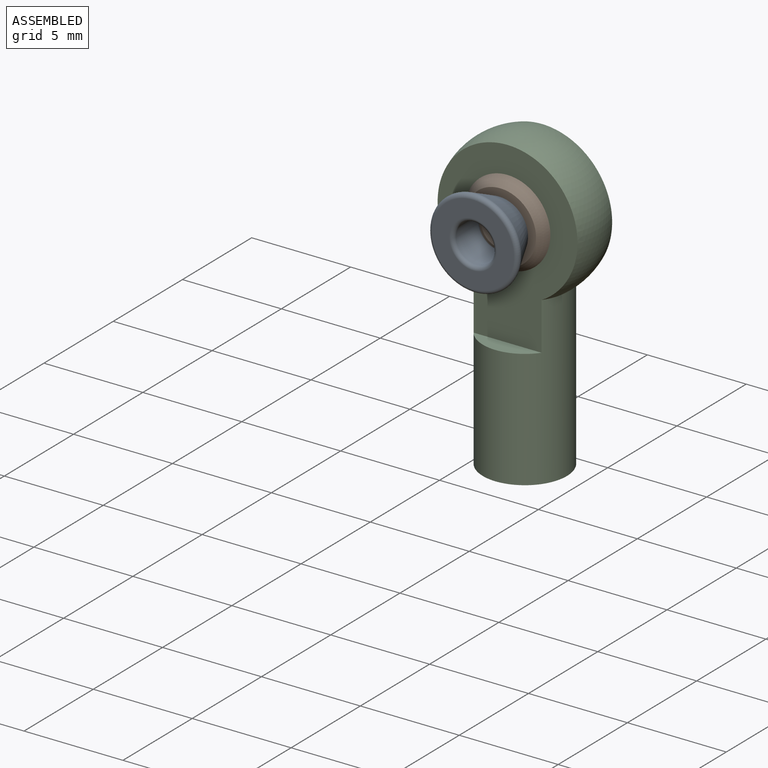
[diagram: assembled view]
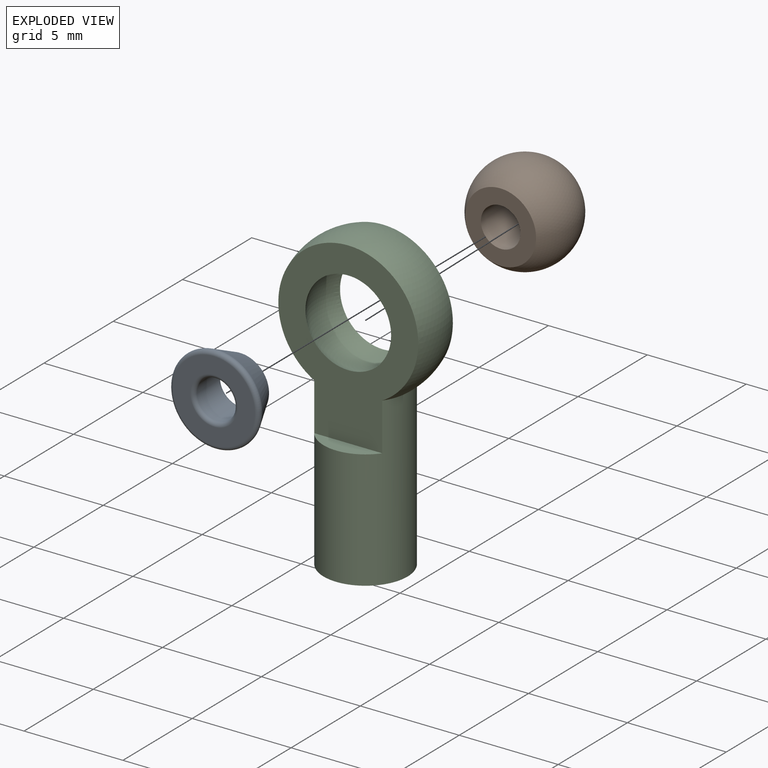
[diagram: exploded view]
GUIDED TOUR — FREECAD ASSEMBLY "M2RodEnd"

This assembly has 3 components, labeled P0..P2 below (a component is one placed body or linked part; the same part can appear more than once), held together by 2 modeled joints. A joint is a constraint between two components; its type names the relative motion it leaves free:
  BALL — leaves all rotation about the listed point free (a ball joint),
  FASTENED — locks the two components together rigidly (no relative motion).
Axis/direction vectors are unit vectors and 'through' points are millimeter coordinates, both in the assembly's world frame.

MATES
  1. BALL [Ball] "Joint": P1 <-> P2, direction (-0.002, 1.000, 0.017) through (2.54, 2.54, 9.83) mm
  2. FASTENED [Fixed] "Joint001": P0 <-> P1, direction (-0.002, 1.000, 0.017) through (2.54, 0.79, 9.80) mm

ASSEMBLY ORDER
  1. P1 — the base component [order heuristic]
  2. P2 — core [order heuristic]
  3. P0 [order verified]
Order-tag legend:
  [order verified] — this step's position reverses a verified removal order: the component was checked to insert without passing through the ones already placed.
  [order heuristic] — the first 2 components form the assembly's core: parts whose collision-free extraction could not be verified, listed in mate-graph order.

Of the 3 components, 2 carry a construction recipe — the FreeCAD feature program (sketches with constraints, then the solid features that consume them) that regenerates the part from scratch, quoted from this document or from the linked companion document it references; the rest are supplied as boundary geometry only. The tour below walks the components in assembly order: each is shown spotlighted twice — in the assembled view, then in the exploded view, where a leader line traces a displaced component back to its assembled socket (components that stay in place when exploded have no leader line; saturated green if recipe-attached, orange if geometry-only; every other component desaturated gray) — followed by its recipe or geometry summary and the mates that hold it.
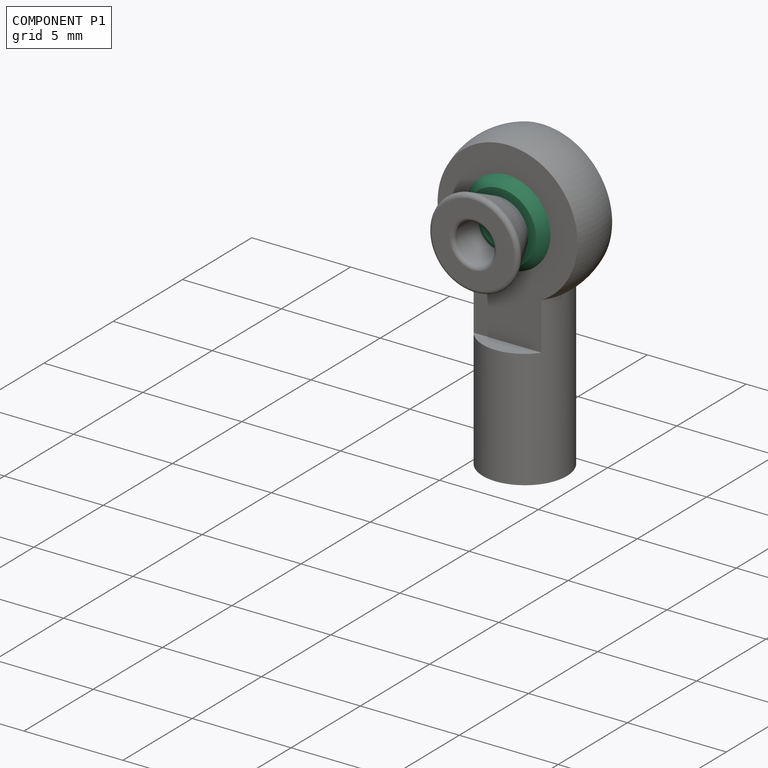
[diagram: component P1 — assembled]
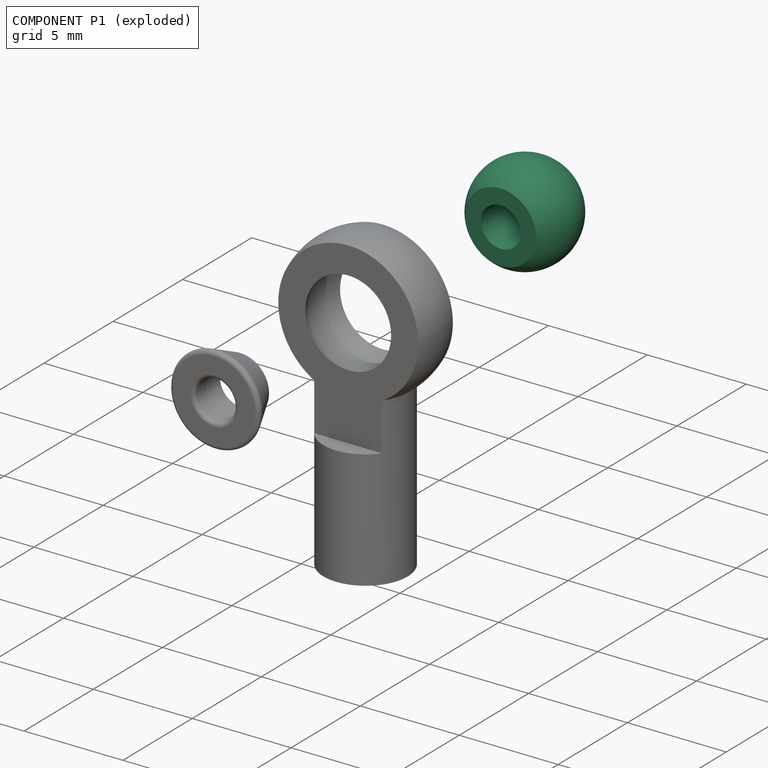
[diagram: component P1 — exploded]
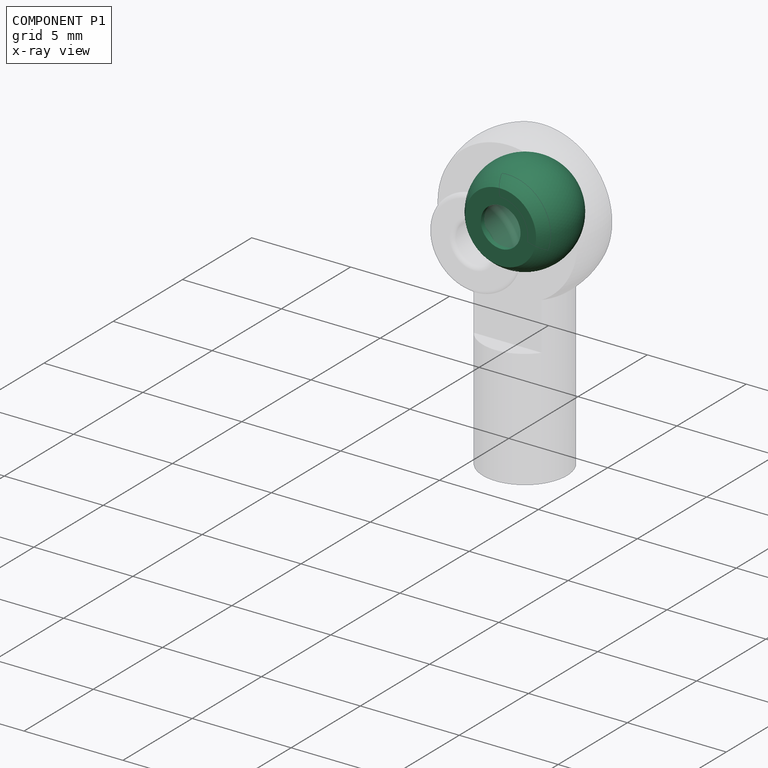
[diagram: component P1 — x-ray view]
COMPONENT P1 — recipe-attached ("RodEndBall", a linked part whose construction recipe lives in a companion FreeCAD document of the same project; that document's serialized recipe follows).
Held by: BALL mate "Joint" to P2; FASTENED mate "Joint001" to P0.
Construction recipe (the companion document, serialized — sketch geometry with constraints, then the solid features built on it; lengths are millimeters unless a unit is written):

FCSTD DOCUMENT  (FreeCAD 1.0R39109 (Git))
Label: M2RodEndBall
License: All rights reserved
LicenseURL: http://en.wikipedia.org/wiki/All_rights_reserved
objects: Sketcher::SketchObject×1, PartDesign::Revolution×1, PartDesign::Body×1, App::Link×1
note: 6 computed .brp shape members not serialized (recipe doc carries the construction recipe); baked Part::Feature solids carry a one-line shape summary decoded from their .brp
EXTERNAL_REF file=../../Dimentions.FCStd obj=dd

FEATURE [Sketcher::SketchObject] Sketch
  ArcFitTolerance = 1e-06
  AttachmentSupport = -> [YZ_Plane]
  FullyConstrained = true
  MakeInternals = false
  MapMode = 5
  Placement = pos=(0,0,0) rot=(0.57735,0.57735,0.57735;2.0944rad)
  expr: .Constraints.BallDiameter = <<M2RodEnd>>.BallDiameter
  expr: .Constraints.BallThickness = <<M2RodEnd>>.BallThickness
  expr: .Constraints.HoleDiameter = <<M2RodEnd>>.HoleDiameter
  sketch-geometry (10):
    g0: LineSegment StartX=1 StartY=1.75 StartZ=0 EndX=1.78536 EndY=1.75 EndZ=0
    g1: LineSegment [constr] StartX=1.78536 StartY=1.75 StartZ=0 EndX=1.78536 EndY=-1.75 EndZ=0
    g2: LineSegment StartX=1.78536 StartY=-1.75 StartZ=0 EndX=1 EndY=-1.75 EndZ=0
    g3: LineSegment StartX=1 StartY=-1.75 StartZ=0 EndX=1 EndY=1.75 EndZ=0
    g4: LineSegment [constr] StartX=-1 StartY=1.75 StartZ=0 EndX=-1.78536 EndY=1.75 EndZ=0
    g5: LineSegment [constr] StartX=-1.78536 StartY=1.75 StartZ=0 EndX=-1.78536 EndY=-1.75 EndZ=0
    g6: LineSegment [constr] StartX=-1.78536 StartY=-1.75 StartZ=0 EndX=-1 EndY=-1.75 EndZ=0
    g7: ArcOfCircle CenterX=0 CenterY=0 CenterZ=0 NormalX=0 NormalY=0 NormalZ=1 AngleXU=0 Radius=2.5 StartAngle=5.50779 EndAngle=7.05858
    g8: ArcOfCircle [constr] CenterX=0 CenterY=0 CenterZ=0 NormalX=0 NormalY=0 NormalZ=1 AngleXU=0 Radius=2.5 StartAngle=2.3662 EndAngle=3.91699
    g9: LineSegment [constr] StartX=-1 StartY=-1.75 StartZ=0 EndX=-1 EndY=1.75 EndZ=0
  constraints (26):
    c: Coincident(g0,g1)
    c: Coincident(g1,g2)
    c: Horizontal(g0)
    c: Horizontal(g2)
    c: Symmetric(g2,g0,g-1)
    c: Coincident(g4,g5)
    c: Coincident(g5,g6)
    c: Horizontal(g4)
    c: Horizontal(g6)
    c: Equal(g6,g2)
    c: Vertical(g5)
    c: Coincident(g7,g-1)
    c: Coincident(g8,g7)
    c: Diameter(g7) = 5  'BallDiameter'
    c: Coincident(g7,g0)
    c: Coincident(g2,g7)
    c: Coincident(g8,g5)
    c: Symmetric(g4,g0,g-2)
    c: Coincident(g3,g0)
    c: Coincident(g8,g4)
    c: Coincident(g3,g2)
    c: Equal(g4,g0)
    c: DistanceX(g4,g0) = 2  'HoleDiameter'
    c: Coincident(g9,g6)
    c: Coincident(g9,g4)
    c: DistanceY(g2,g0) = 3.5  'BallThickness'
FEATURE [PartDesign::Revolution] Revolution
  Angle = 360
  Angle2 = 60
  Axis = (0,0,1)
  Base = (0,0,0)
  Placement = pos=(0,0,0) rot=(0.57735,0.57735,0.57735;2.0944rad)
  Profile = -> Sketch
  ReferenceAxis = -> Sketch [V_Axis]
  Reversed = true
  Suppressed = false
  Type = 0
FEATURE [PartDesign::Body] Body  label="RodEndBall"
  AllowCompound = false
  Group = -> [Sketch,Revolution]
  Origin = -> Origin
  Tip = -> Revolution
FEATURE [App::Link] Link001  label="M2RodEnd"
  LinkedObject = -> <external ../../Dimentions.FCStd>#dd
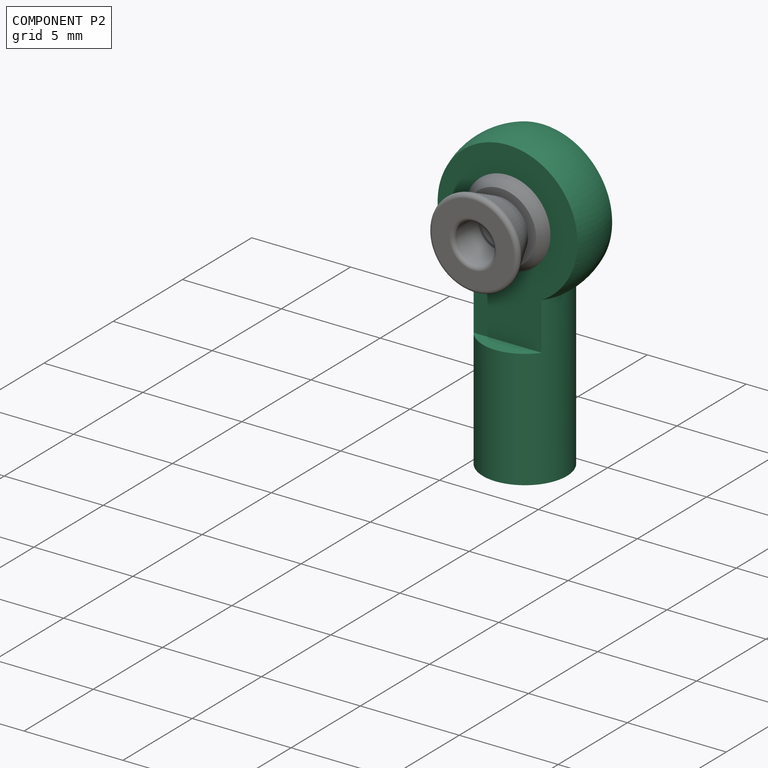
[diagram: component P2 — assembled]
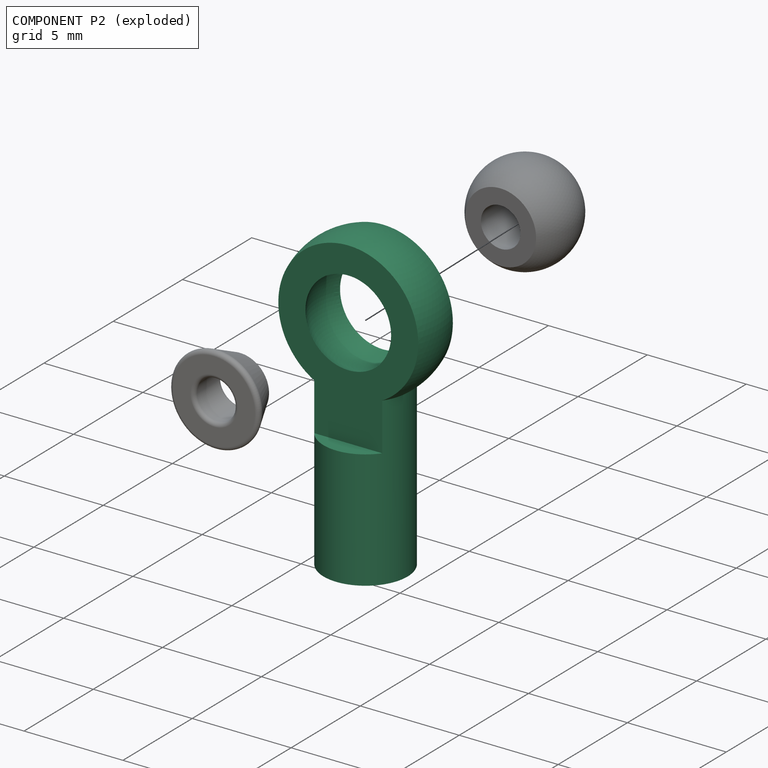
[diagram: component P2 — exploded]
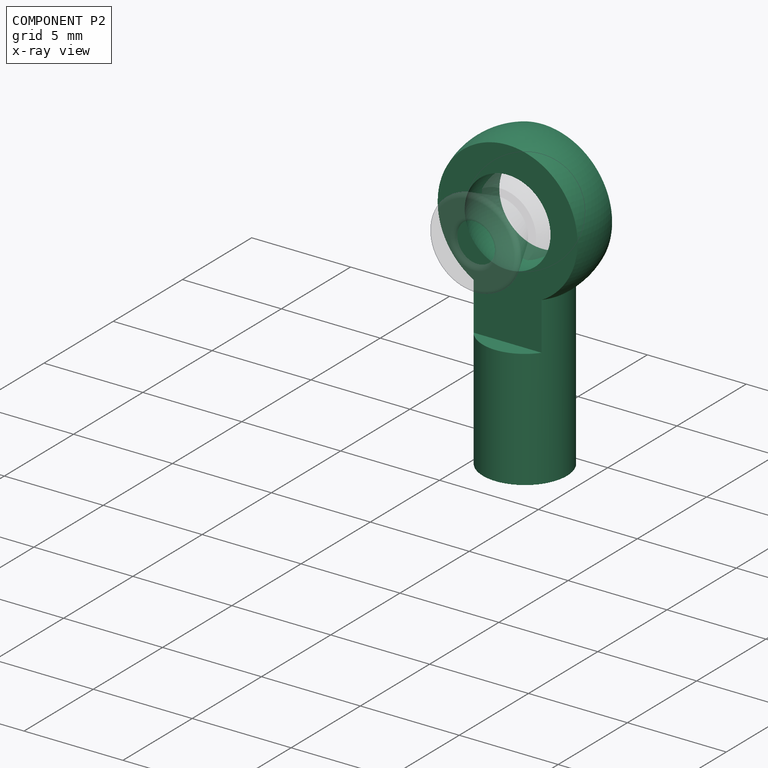
[diagram: component P2 — x-ray view]
COMPONENT P2 — recipe-attached ("RodEndBody", a linked part whose construction recipe lives in a companion FreeCAD document of the same project; that document's serialized recipe follows).
Held by: BALL mate "Joint" to P1.
Construction recipe (the companion document, serialized — sketch geometry with constraints, then the solid features built on it; lengths are millimeters unless a unit is written):

FCSTD DOCUMENT  (FreeCAD 1.0R39109 (Git))
Label: M2RodEndBody
License: All rights reserved
LicenseURL: http://en.wikipedia.org/wiki/All_rights_reserved
objects: Sketcher::SketchObject×2, PartDesign::Revolution×1, PartDesign::Pocket×1, PartDesign::Body×1, App::Link×1
note: 11 computed .brp shape members not serialized (recipe doc carries the construction recipe); baked Part::Feature solids carry a one-line shape summary decoded from their .brp
EXTERNAL_REF file=../../Dimentions.FCStd obj=dd

FEATURE [Sketcher::SketchObject] Sketch
  ArcFitTolerance = 1e-06
  AttachmentSupport = -> [YZ_Plane]
  FullyConstrained = true
  MakeInternals = false
  MapMode = 5
  Placement = pos=(0,0,0) rot=(0.57735,0.57735,0.57735;2.0944rad)
  expr: .Constraints.BallDiameter = <<M2RodEnd>>.BallDiameter
  expr: .Constraints.BoltHole = <<M2RodEnd>>.HoleDiameter
  expr: .Constraints.HeadDiameter = <<M2RodEnd>>.HeadDiameter
  expr: .Constraints.ShaftDiameter = <<M2RodEnd>>.ShaftDiameter
  expr: .Constraints.TotalLength = <<M2RodEnd>>.TotalLength
  sketch-geometry (18):
    g0: LineSegment StartX=2.125 StartY=-4.2051 StartZ=0 EndX=2.125 EndY=4.2051 EndZ=0
    g1: LineSegment [constr] StartX=2.125 StartY=4.2051 StartZ=0 EndX=-2.125 EndY=4.2051 EndZ=0
    g2: LineSegment [constr] StartX=-2.125 StartY=4.2051 StartZ=0 EndX=-2.125 EndY=-4.2051 EndZ=0
    g3: Circle [constr] CenterX=9.2e-15 CenterY=-7.2949 CenterZ=0 NormalX=0 NormalY=0 NormalZ=1 AngleXU=0 Radius=3.75
    g4: LineSegment [constr] StartX=-2.125 StartY=-4.2051 StartZ=0 EndX=-1 EndY=-4.2051 EndZ=0
    g5: LineSegment [constr] StartX=-1 StartY=-4.2051 StartZ=0 EndX=-1 EndY=3.0801 EndZ=0
    g6: LineSegment StartX=1 StartY=3.0801 StartZ=0 EndX=1 EndY=-4.2051 EndZ=0
    g7: LineSegment StartX=1 StartY=-4.2051 StartZ=0 EndX=2.125 EndY=-4.2051 EndZ=0
    g8: LineSegment [constr] StartX=1 StartY=4.2051 StartZ=0 EndX=1 EndY=3.0801 EndZ=0
    g9: LineSegment [constr] StartX=1 StartY=3.0801 StartZ=0 EndX=2.125 EndY=3.0801 EndZ=0
    g10: ArcOfCircle CenterX=9.2e-15 CenterY=7.2949 CenterZ=0 NormalX=0 NormalY=0 NormalZ=1 AngleXU=0 Radius=2.5 StartAngle=4.71239 EndAngle=7.85398
    g11: ArcOfCircle [constr] CenterX=3.34022e-07 CenterY=7.2949 CenterZ=0 NormalX=0 NormalY=0 NormalZ=1 AngleXU=0 Radius=2.5 StartAngle=1.5708 EndAngle=4.71239
    g12: ArcOfCircle CenterX=9.2e-15 CenterY=7.2949 CenterZ=0 NormalX=0 NormalY=0 NormalZ=1 AngleXU=0 Radius=3.75 StartAngle=5.31484 EndAngle=7.85398
    g13: ArcOfCircle [constr] CenterX=9.2e-15 CenterY=7.2949 CenterZ=0 NormalX=0 NormalY=0 NormalZ=1 AngleXU=0 Radius=3.75 StartAngle=1.5708 EndAngle=4.10993
    g14: LineSegment [constr] StartX=-1 StartY=3.0801 StartZ=0 EndX=-4e-16 EndY=3.0801 EndZ=0
    g15: LineSegment StartX=-4e-16 StartY=3.0801 StartZ=0 EndX=1 EndY=3.0801 EndZ=0
    g16: LineSegment StartX=4e-16 StartY=11.0449 StartZ=0 EndX=2e-16 EndY=9.7949 EndZ=0
    g17: LineSegment StartX=-4e-16 StartY=4.7949 StartZ=0 EndX=-4e-16 EndY=3.0801 EndZ=0
  constraints (50):
    c: Coincident(g0,g1)
    c: Coincident(g1,g2)
    c: Horizontal(g1)
    c: Vertical(g0)
    c: Vertical(g2)
    c: Symmetric(g2,g0,g-2)
    c: DistanceX(g2,g0) = 4.25  'ShaftDiameter'
    c: PointOnObject(g0,g3)
    c: Coincident(g2,g4)
    c: Horizontal(g4)
    c: Coincident(g4,g5)
    c: Vertical(g5)
    c: Vertical(g6)
    c: Coincident(g6,g7)
    c: Coincident(g7,g0)
    c: Horizontal(g7)
    c: Symmetric(g5,g6,g-2)
    c: PointOnObject(g8,g1)
    c: PointOnObject(g9,g0)
    c: Horizontal(g9)
    c: Vertical(g8)
    c: Equal(g8,g9)
    c: DistanceX(g4,g6) = 2  'BoltHole'
    c: PointOnObject(g10,g-2)
    c: Coincident(g11,g10)
    c: Coincident(g11,g10)
    c: Diameter(g10) = 5  'BallDiameter'
    c: Coincident(g12,g10)
    c: Coincident(g12,g0)
    c: PointOnObject(g12,g-2)
    c: Coincident(g13,g10)
    c: Coincident(g13,g12)
    c: Coincident(g13,g1)
    c: Diameter(g12) = 7.5  'HeadDiameter'
    c: Coincident(g14,g5)
    c: PointOnObject(g14,g-2)
    c: Coincident(g15,g14)
    c: Coincident(g15,g6)
    c: Horizontal(g15)
    c: Coincident(g6,g8)
    c: Coincident(g9,g6)
    c: DistanceY(g4,g12) = 15.25  'TotalLength'
    c: Coincident(g16,g12)
    c: Coincident(g16,g10)
    c: Coincident(g17,g10)
    c: Coincident(g17,g15)
    c: Symmetric(g10,g3,g-1)
    c: Equal(g3,g12)
    c: Vertical(g17)
    c: Equal(g11,g10)
FEATURE [PartDesign::Revolution] Revolution
  Angle = 360
  Angle2 = 60
  Axis = (-3e-16,3e-16,1)
  Base = (0,0,0)
  Placement = pos=(0,0,0) rot=(0.57735,0.57735,0.57735;2.0944rad)
  Profile = -> Sketch
  ReferenceAxis = -> Z_Axis
  Suppressed = false
  Type = 0
FEATURE [Sketcher::SketchObject] Sketch001
  ArcFitTolerance = 1e-06
  AttachmentSupport = -> [YZ_Plane]
  FullyConstrained = true
  MakeInternals = false
  MapMode = 5
  Placement = pos=(0,0,0) rot=(0.57735,0.57735,0.57735;2.0944rad)
  expr: .Constraints.HeadThickness = <<M2RodEnd>>.HeadThickness
  expr: Constraints[30] = <<M2RodEnd>>.NonFlatShaftLength
  sketch-geometry (12):
    g0: LineSegment StartX=1.25 StartY=12.7949 StartZ=0 EndX=12.25 EndY=12.7949 EndZ=0
    g1: LineSegment StartX=12.25 StartY=12.7949 StartZ=0 EndX=12.25 EndY=1.7949 EndZ=0
    g2: LineSegment StartX=12.25 StartY=1.7949 StartZ=0 EndX=1.25 EndY=1.7949 EndZ=0
    g3: LineSegment StartX=1.25 StartY=1.7949 StartZ=0 EndX=1.25 EndY=12.7949 EndZ=0
    g4: LineSegment StartX=-12.25 StartY=12.7949 StartZ=0 EndX=-1.25 EndY=12.7949 EndZ=0
    g5: LineSegment StartX=-1.25 StartY=12.7949 StartZ=0 EndX=-1.25 EndY=1.7949 EndZ=0
    g6: LineSegment StartX=-1.25 StartY=1.7949 StartZ=0 EndX=-12.25 EndY=1.7949 EndZ=0
    g7: LineSegment StartX=-12.25 StartY=1.7949 StartZ=0 EndX=-12.25 EndY=12.7949 EndZ=0
    g8: LineSegment [constr] StartX=-1.25 StartY=12.7949 StartZ=0 EndX=1.25 EndY=12.7949 EndZ=0
    g9: LineSegment [constr] StartX=-1.25 StartY=1.7949 StartZ=0 EndX=1.25 EndY=1.7949 EndZ=0
    g10: LineSegment [constr] StartX=-1.25 StartY=12.7949 StartZ=0 EndX=9.1e-15 EndY=7.2949 EndZ=0
    g11: LineSegment [constr] StartX=-1.25 StartY=1.7949 StartZ=0 EndX=9.1e-15 EndY=7.2949 EndZ=0
  constraints (31):
    c: Coincident(g0,g1)
    c: Coincident(g1,g2)
    c: Coincident(g2,g3)
    c: Coincident(g3,g0)
    c: Horizontal(g0)
    c: Horizontal(g2)
    c: Vertical(g1)
    c: Vertical(g3)
    c: Coincident(g4,g5)
    c: Coincident(g5,g6)
    c: Coincident(g6,g7)
    c: Coincident(g7,g4)
    c: Horizontal(g4)
    c: Horizontal(g6)
    c: Vertical(g5)
    c: Vertical(g7)
    c: Coincident(g8,g4)
    c: Coincident(g8,g0)
    c: Symmetric(g4,g0,g-2)
    c: Coincident(g9,g5)
    c: Coincident(g9,g2)
    c: Horizontal(g9)
    c: Coincident(g4,g10)
    c: Coincident(g10,g-3)
    c: Coincident(g5,g11)
    c: Coincident(g11,g-3)
    c: Equal(g10,g11)
    c: DistanceX(g8,g8) = 2.5  'HeadThickness'
    c: Equal(g0,g4)
    c: Equal(g3,g2)
    c: DistanceY(g-4,g2) = 6
FEATURE [PartDesign::Pocket] Pocket
  BaseFeature = -> Revolution
  Direction = (-1,0,0)
  Length = 5
  Length2 = 100
  Midplane = true
  Placement = pos=(0,0,0) rot=(0.57735,0.57735,0.57735;2.0944rad)
  Profile = -> Sketch001
  Suppressed = false
  Type = 1
FEATURE [PartDesign::Body] Body  label="RodEndBody"
  AllowCompound = false
  Group = -> [Sketch,Revolution,Sketch001,Pocket]
  Origin = -> Origin
  Tip = -> Pocket
FEATURE [App::Link] Link001  label="M2RodEnd"
  LinkedObject = -> <external ../../Dimentions.FCStd>#dd
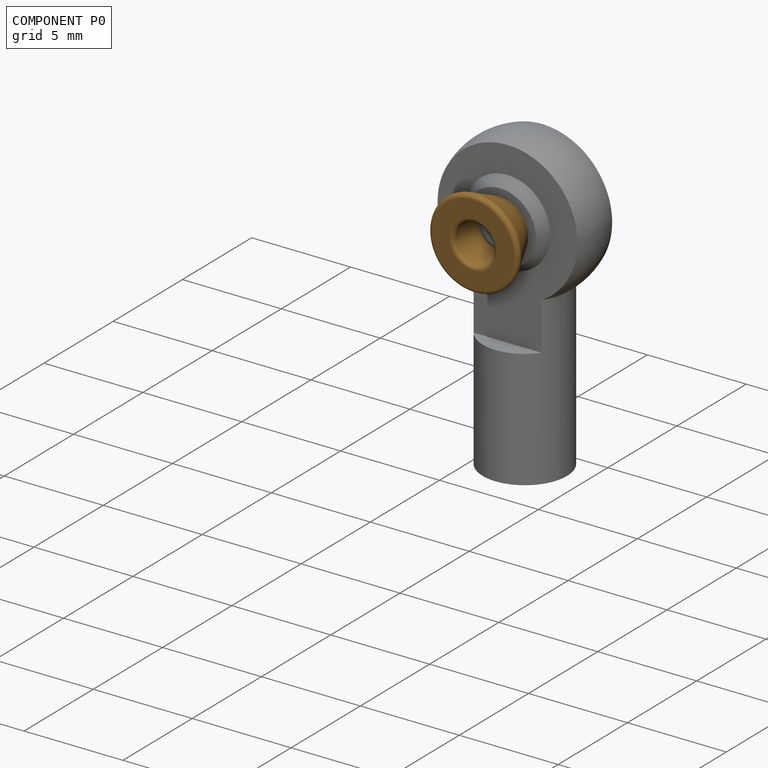
[diagram: component P0 — assembled]
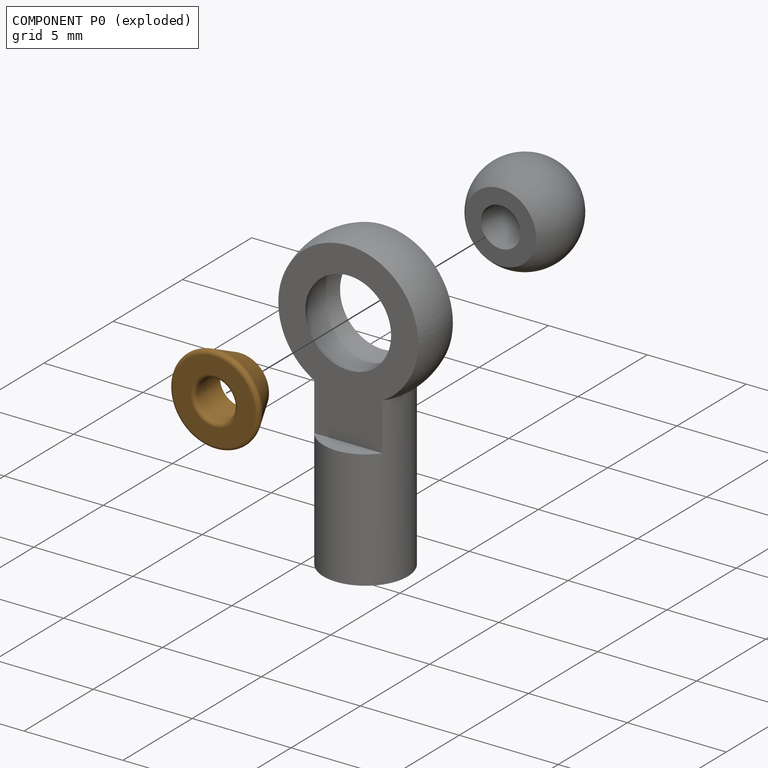
[diagram: component P0 — exploded]
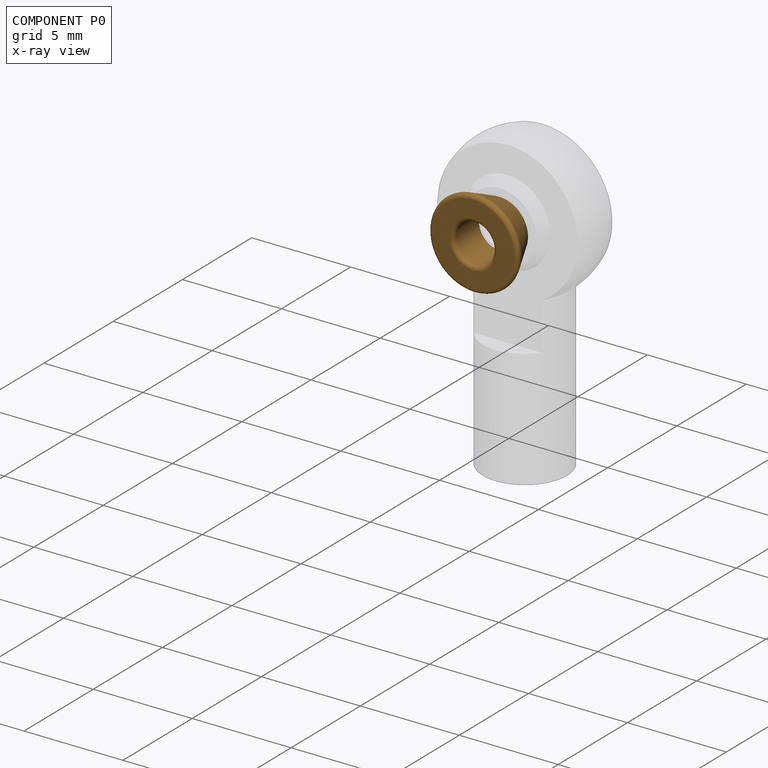
[diagram: component P0 — x-ray view]
COMPONENT P0 — geometry summary ("M2RodEnd"; no construction recipe available for this part):
  bounding box: 4.5 x 4.5 x 2.1 mm
  tessellated surface: 33,768 triangles
  volume: 16 mm^3 (39% of its bounding box)
  symmetry: revolution-symmetric about the y axis through its bounding-box center; mirror-symmetric across its x mid-plane, z mid-plane
Held by: FASTENED mate "Joint001" to P1.
PROVENANCE & LICENSES
Assembly and component geometry: a FreeCAD (.FCStd) document from a public repository crawl; components, placements and joints were extracted with FreeCAD and each solid tessellated.
Construction recipes: the document's own serialized feature recipes (and, for linked parts, the recipes of companion documents from the same project).
License: gpl-3.0.
Joints: native FreeCAD joints and A2plus constraints are mapped to standard mate types.
Verification: 2 of this assembly's 3 components carry a construction recipe (2 from linked companion documents in the same project); the rest are geometry-only. Every component's tessellation passed the extraction mesh gates (mesh-volume checksum against the B-rep where available, bounding-box inflation <= 2%).
Renders: orthographic iso camera (az 35 / el 25); the floor grid conveys scale (grid pitch printed in each image; no ruler). In the exploded view each component is displaced by its stored offset vector: the offsets alone carry the explosion direction (mate normal/axis signs are not orientation cues and do not encode it), and separation distances are assigned per mate-chain, not proportionally to assembly-order depth.
